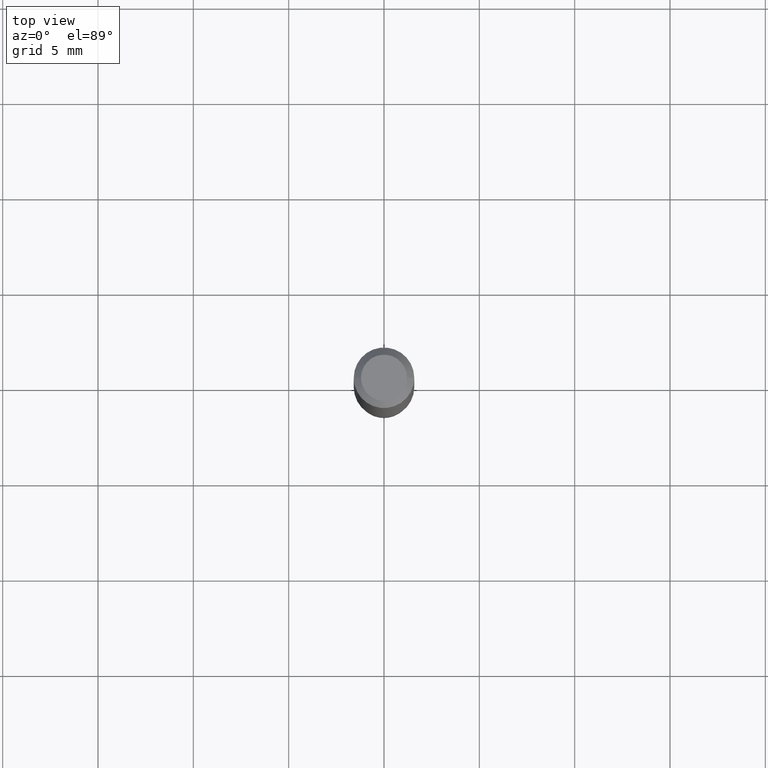
[diagram: clean part render]
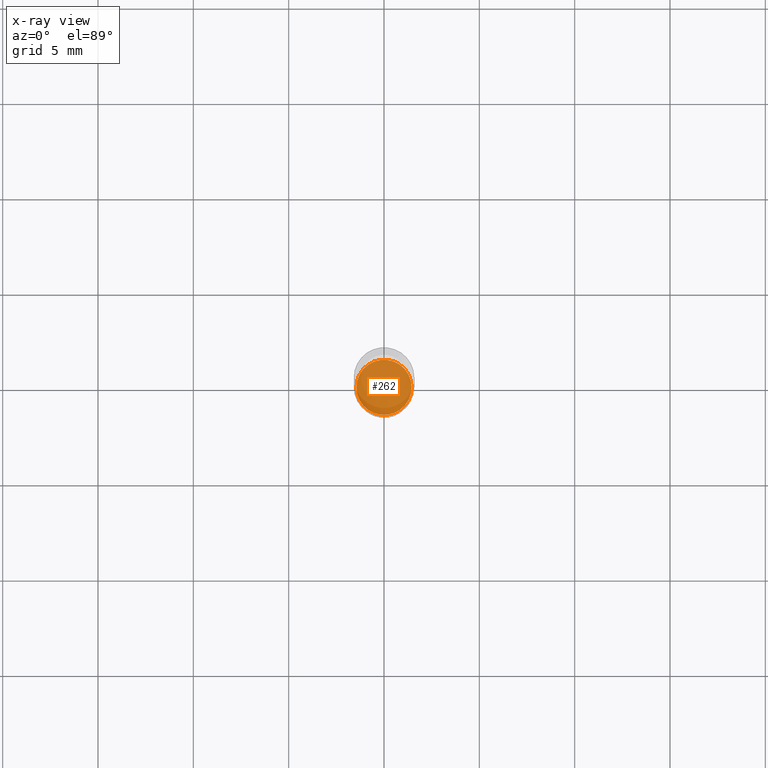
[diagram: x-ray — body ghosted, one internal face saturated and labeled with its STEP entity id]
A machine part, top view, then the same camera in x-ray: the body is ghosted and one INTERNAL B-rep face — a face not visible from any outside direction — is saturated and labeled: STEP entity #262.
In plain terms, the highlighted planar face has unit normal (-0, 0, 1).
Its self-contained STEP definition (entity closure, byte-faithful):
#2 = CARTESIAN_POINT ( 'NONE',  ( 2.824516471143833307E-29, -4.032660946363833383E-15, -1.155000000000000027 ) ) ;
#18 = ORIENTED_EDGE ( 'NONE', *, *, #239, .F. ) ;
#71 = CARTESIAN_POINT ( 'NONE',  ( 2.824516471143833307E-29, -4.032660946363833383E-15, -1.155000000000000027 ) ) ;
#74 = DIRECTION ( 'NONE',  ( -2.438088387897960049E-29, 3.491481338843145188E-15, 1.000000000000000000 ) ) ;
#76 = CARTESIAN_POINT ( 'NONE',  ( 2.824516471143833307E-29, -4.032660946363833383E-15, -1.155000000000000027 ) ) ;
#100 = AXIS2_PLACEMENT_3D ( 'NONE', #76, #74, #235 ) ;
#112 = PLANE ( 'NONE',  #100 ) ;
#115 = DIRECTION ( 'NONE',  ( -2.445468806185136597E-29, 3.491481338843145583E-15, 1.000000000000000000 ) ) ;
#165 = DIRECTION ( 'NONE',  ( 1.000000000000000000, -6.982962677686268288E-15, 0.000000000000000000 ) ) ;
#167 = ORIENTED_EDGE ( 'NONE', *, *, #223, .F. ) ;
#188 = CARTESIAN_POINT ( 'NONE',  ( 0.05699999999999997430, -4.430689818991950396E-15, -1.155000000000000027 ) ) ;
#198 = AXIS2_PLACEMENT_3D ( 'NONE', #2, #115, #437 ) ;
#208 = EDGE_LOOP ( 'NONE', ( #18, #167 ) ) ;
#223 = EDGE_CURVE ( 'NONE', #456, #439, #471, .T. ) ;
#224 = CARTESIAN_POINT ( 'NONE',  ( -0.05699999999999997430, -3.625002359806465505E-15, -1.155000000000000027 ) ) ;
#235 = DIRECTION ( 'NONE',  ( 1.000000000000000000, -6.982962677686265922E-15, 4.876176775795935793E-29 ) ) ;
#239 = EDGE_CURVE ( 'NONE', #439, #456, #322, .T. ) ;
#262 = ADVANCED_FACE ( 'NONE', ( #314 ), #112, .F. ) ;
#314 = FACE_OUTER_BOUND ( 'NONE', #208, .T. ) ;
#322 = CIRCLE ( 'NONE', #404, 0.05699999999999997430 ) ;
#404 = AXIS2_PLACEMENT_3D ( 'NONE', #71, #445, #165 ) ;
#437 = DIRECTION ( 'NONE',  ( 1.000000000000000000, -6.982962677686268288E-15, 0.000000000000000000 ) ) ;
#439 = VERTEX_POINT ( 'NONE', #188 ) ;
#445 = DIRECTION ( 'NONE',  ( -2.445468806185136597E-29, 3.491481338843145583E-15, 1.000000000000000000 ) ) ;
#456 = VERTEX_POINT ( 'NONE', #224 ) ;
#471 = CIRCLE ( 'NONE', #198, 0.05699999999999997430 ) ;